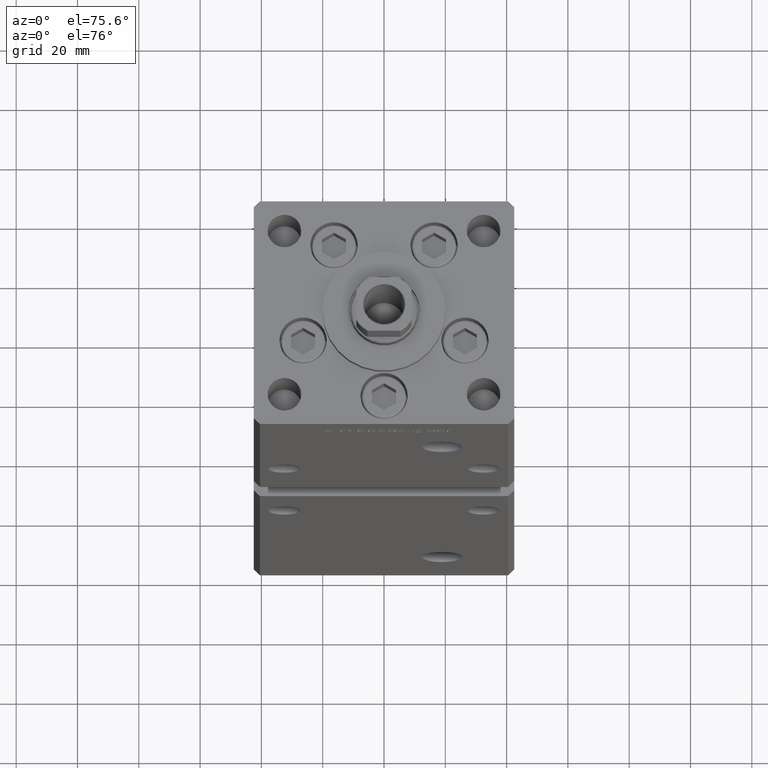
[diagram: clean part render]
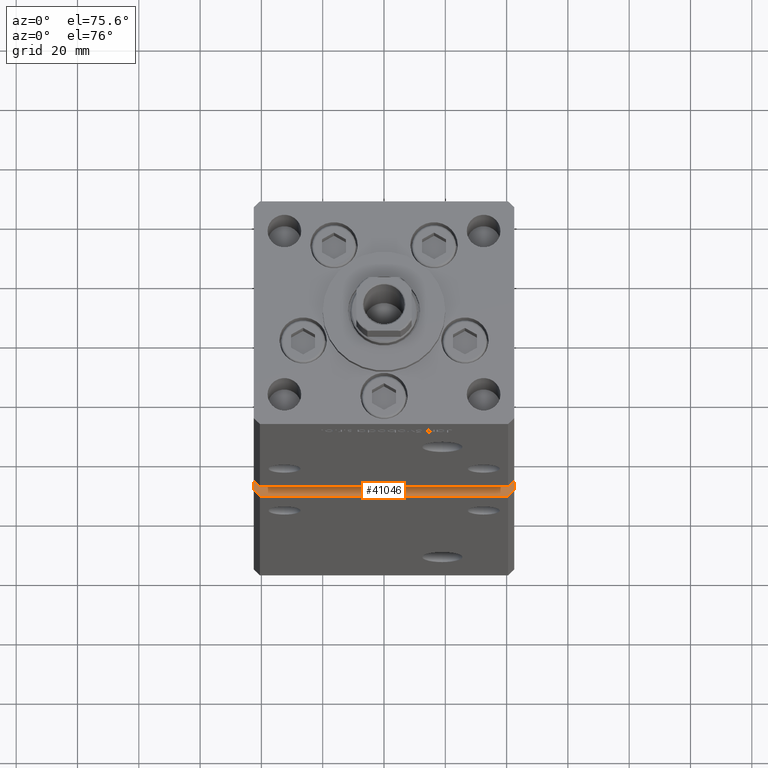
[diagram: same view with one face highlighted and labeled with its STEP entity id]
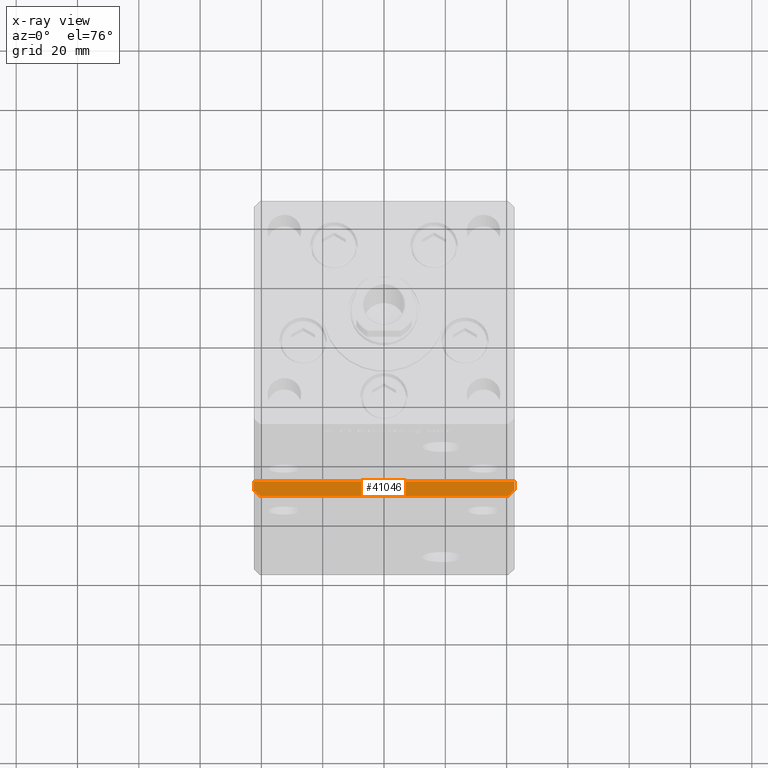
[diagram: x-ray of the same camera — body ghosted, the highlighted face saturated]
A machine part, auxiliary view. The second image highlights one B-rep face of the part: STEP entity #41046.
The next image is the same camera in x-ray: the body ghosted, the highlighted face saturated — about 0% of this face is hidden behind the body in this view.
In plain terms, the highlighted planar face has unit normal (0, 0, -1).
Its self-contained STEP definition (entity closure, byte-faithful):
#137 = DIRECTION ( 'NONE',  ( -0.7071067811865474617, 0.7071067811865474617, 0.000000000000000000 ) ) ;
#2692 = FACE_OUTER_BOUND ( 'NONE', #11909, .T. ) ;
#2864 = LINE ( 'NONE', #39971, #3079 ) ;
#3079 = VECTOR ( 'NONE', #6903, 1000.000000000000000 ) ;
#3669 = LINE ( 'NONE', #16050, #8270 ) ;
#5258 = CARTESIAN_POINT ( 'NONE',  ( 42.49999999999998579, -35.50000000000000711, 89.00000000000004263 ) ) ;
#6456 = DIRECTION ( 'NONE',  ( -1.000000000000000000, 0.000000000000000000, -0.000000000000000000 ) ) ;
#6528 = VECTOR ( 'NONE', #6904, 1000.000000000000000 ) ;
#6638 = CARTESIAN_POINT ( 'NONE',  ( -42.49999999999998579, -32.50000000000000711, 89.00000000000004263 ) ) ;
#6903 = DIRECTION ( 'NONE',  ( -0.000000000000000000, -1.000000000000000000, -0.000000000000000000 ) ) ;
#6904 = DIRECTION ( 'NONE',  ( 1.000000000000000000, 0.000000000000000000, 0.000000000000000000 ) ) ;
#8270 = VECTOR ( 'NONE', #32431, 1000.000000000000000 ) ;
#10982 = CARTESIAN_POINT ( 'NONE',  ( -42.49999999999998579, -32.50000000000000711, 89.00000000000004263 ) ) ;
#11325 = ORIENTED_EDGE ( 'NONE', *, *, #28662, .T. ) ;
#11909 = EDGE_LOOP ( 'NONE', ( #52182, #11325, #19476, #22159, #47749, #30116 ) ) ;
#13331 = EDGE_CURVE ( 'NONE', #31665, #45983, #19488, .T. ) ;
#15370 = CARTESIAN_POINT ( 'NONE',  ( 42.49999999999998579, -32.50000000000000000, 89.00000000000004263 ) ) ;
#15429 = DIRECTION ( 'NONE',  ( -0.000000000000000000, -1.000000000000000000, -0.000000000000000000 ) ) ;
#15790 = VECTOR ( 'NONE', #137, 1000.000000000000114 ) ;
#16050 = CARTESIAN_POINT ( 'NONE',  ( -42.49999999999998579, -37.50000000000000711, 89.00000000000004263 ) ) ;
#19476 = ORIENTED_EDGE ( 'NONE', *, *, #13331, .F. ) ;
#19488 = LINE ( 'NONE', #52270, #31052 ) ;
#22159 = ORIENTED_EDGE ( 'NONE', *, *, #44010, .F. ) ;
#22607 = EDGE_CURVE ( 'NONE', #27736, #23354, #32927, .T. ) ;
#23354 = VERTEX_POINT ( 'NONE', #52639 ) ;
#26885 = CARTESIAN_POINT ( 'NONE',  ( -42.49999999999998579, -32.50000000000000711, 89.00000000000004263 ) ) ;
#27736 = VERTEX_POINT ( 'NONE', #40137 ) ;
#27869 = LINE ( 'NONE', #6638, #6528 ) ;
#28087 = CARTESIAN_POINT ( 'NONE',  ( 42.49999999999998579, -35.50000000000000711, 89.00000000000004263 ) ) ;
#28662 = EDGE_CURVE ( 'NONE', #48448, #45983, #31041, .T. ) ;
#29172 = CARTESIAN_POINT ( 'NONE',  ( -42.49999999999998579, -35.50000000000000711, 89.00000000000004263 ) ) ;
#30116 = ORIENTED_EDGE ( 'NONE', *, *, #22607, .F. ) ;
#30526 = DIRECTION ( 'NONE',  ( 0.7071067811865474617, 0.7071067811865474617, 0.000000000000000000 ) ) ;
#31041 = LINE ( 'NONE', #5258, #39995 ) ;
#31052 = VECTOR ( 'NONE', #15429, 1000.000000000000000 ) ;
#31665 = VERTEX_POINT ( 'NONE', #15370 ) ;
#32431 = DIRECTION ( 'NONE',  ( 1.000000000000000000, 0.000000000000000000, 0.000000000000000000 ) ) ;
#32927 = LINE ( 'NONE', #29172, #15790 ) ;
#39409 = EDGE_CURVE ( 'NONE', #47543, #23354, #2864, .T. ) ;
#39572 = EDGE_CURVE ( 'NONE', #27736, #48448, #3669, .T. ) ;
#39971 = CARTESIAN_POINT ( 'NONE',  ( -42.49999999999998579, -32.50000000000000711, 89.00000000000004263 ) ) ;
#39995 = VECTOR ( 'NONE', #30526, 1000.000000000000114 ) ;
#40137 = CARTESIAN_POINT ( 'NONE',  ( -40.49999999999998579, -37.50000000000000711, 89.00000000000004263 ) ) ;
#41046 = ADVANCED_FACE ( 'NONE', ( #2692 ), #51640, .F. ) ;
#41776 = AXIS2_PLACEMENT_3D ( 'NONE', #26885, #43296, #6456 ) ;
#43296 = DIRECTION ( 'NONE',  ( 0.000000000000000000, 0.000000000000000000, -1.000000000000000000 ) ) ;
#43962 = CARTESIAN_POINT ( 'NONE',  ( 40.49999999999998579, -37.50000000000000711, 89.00000000000004263 ) ) ;
#44010 = EDGE_CURVE ( 'NONE', #47543, #31665, #27869, .T. ) ;
#45983 = VERTEX_POINT ( 'NONE', #28087 ) ;
#47543 = VERTEX_POINT ( 'NONE', #10982 ) ;
#47749 = ORIENTED_EDGE ( 'NONE', *, *, #39409, .T. ) ;
#48448 = VERTEX_POINT ( 'NONE', #43962 ) ;
#51640 = PLANE ( 'NONE',  #41776 ) ;
#52182 = ORIENTED_EDGE ( 'NONE', *, *, #39572, .T. ) ;
#52270 = CARTESIAN_POINT ( 'NONE',  ( 42.49999999999998579, -32.50000000000000711, 89.00000000000004263 ) ) ;
#52639 = CARTESIAN_POINT ( 'NONE',  ( -42.49999999999998579, -35.49999999999996447, 89.00000000000004263 ) ) ;